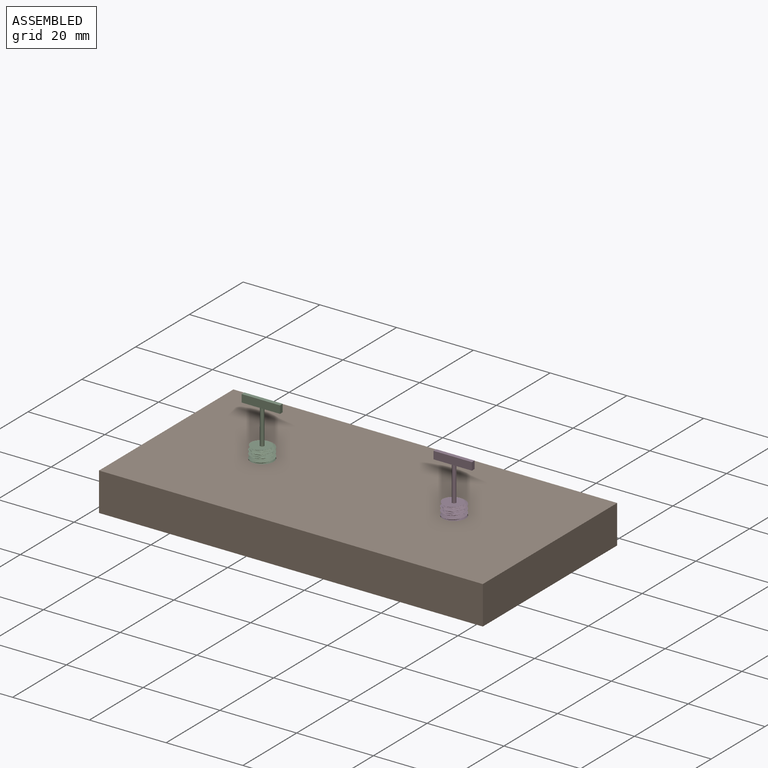
[diagram: assembled view]
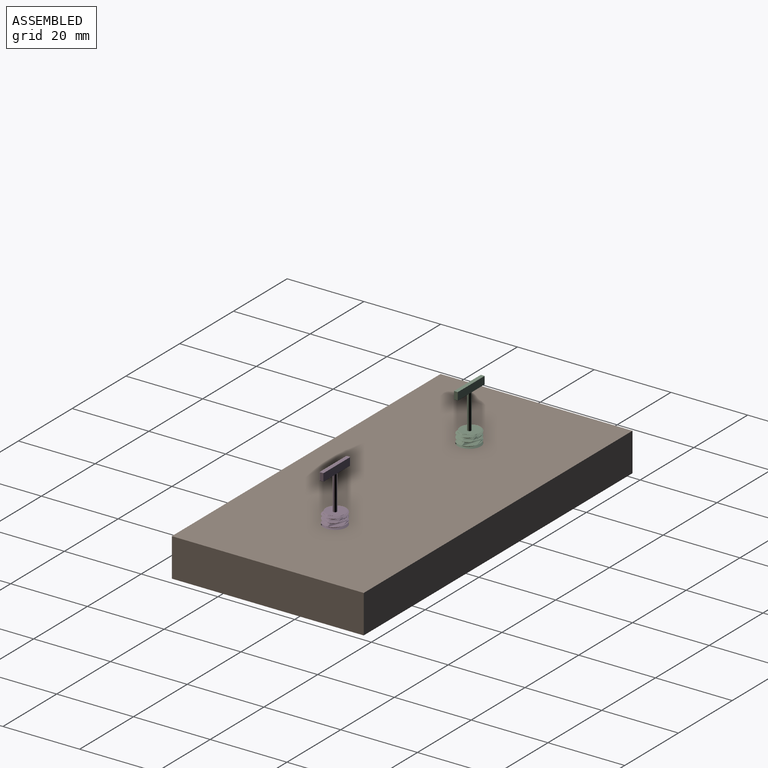
[diagram: assembled view, second angle]
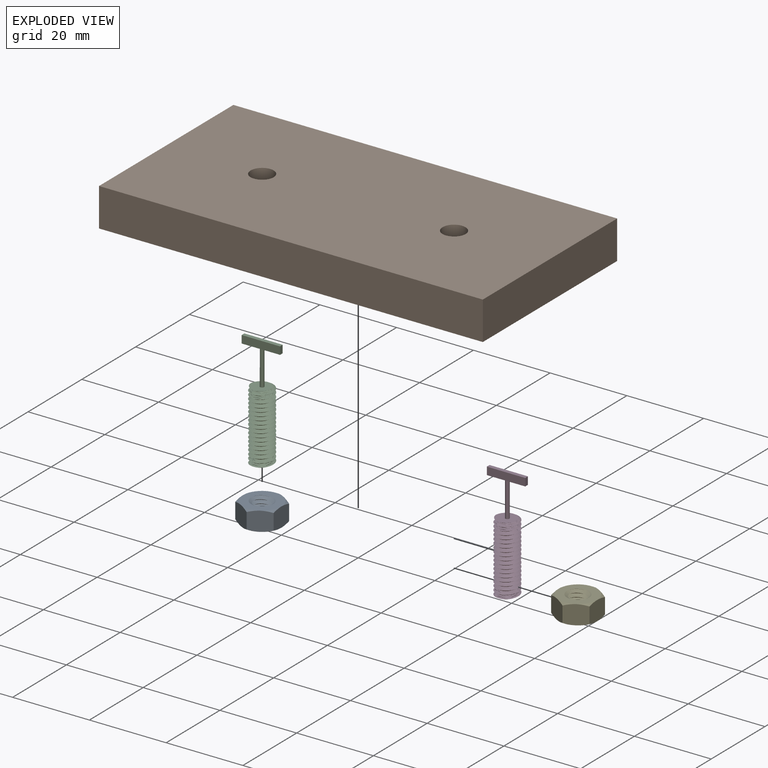
[diagram: exploded view]
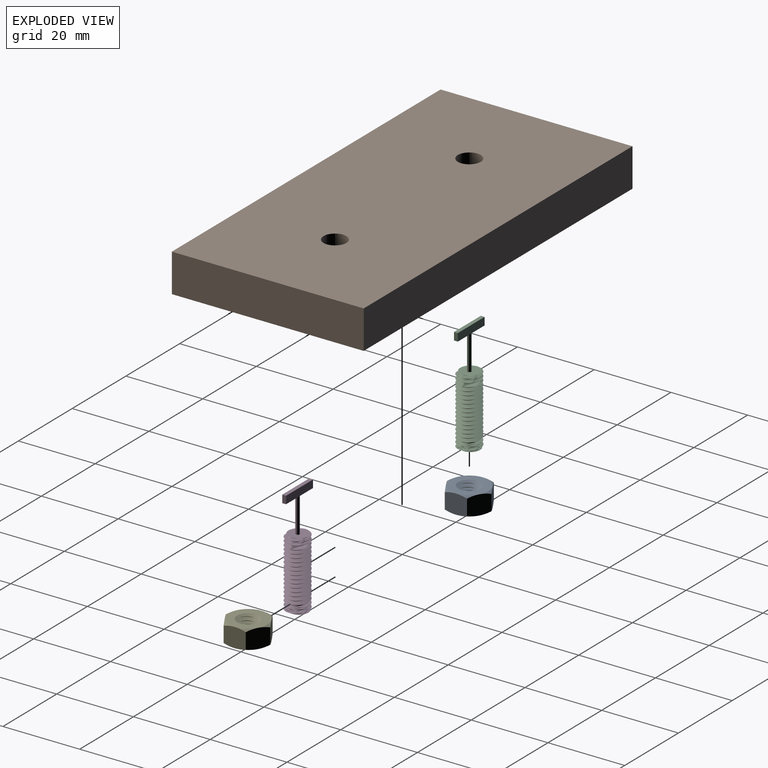
[diagram: exploded view, second angle]
ASSEMBLY  parts=5 mates=2
PART A: 25 faces, bbox 12x12x6.5 mm
  f0: cone r=0mm half-angle=60deg, axis (0,0,-1), area 6.2mm2, adj f3,f23,f24
  f1: plane 10.01x10.01mm, normal (0,0,1), area 52.2mm2, adj f2,f16,f17,f18,f19,f20,f21,f22
  f2: cone r=0mm half-angle=60deg, axis (0,0,1), area 6.2mm2, adj f1,f23,f24
  f3: plane 10.01x10.01mm, normal (0,0,-1), area 52.2mm2, adj f0,f4,f5,f6,f7,f8,f9,f22
  f4: cone r=5mm half-angle=60deg, axis (0,0,1), area 2.5mm2, adj f3,f14,f15
  f5: cone r=5mm half-angle=60deg, axis (0,0,1), area 2.5mm2, adj f3,f10,f15
  f6: cone r=5mm half-angle=60deg, axis (0,0,1), area 2.5mm2, adj f3,f13,f14
  f7: cone r=5mm half-angle=60deg, axis (0,0,1), area 2.5mm2, adj f3,f12,f13
  f8: cone r=5mm half-angle=60deg, axis (0,0,1), area 2.5mm2, adj f3,f11,f12
  f9: cone r=5mm half-angle=60deg, axis (0,0,1), area 2.5mm2, adj f3,f10,f11
  f10: plane 5.48x5.47mm, normal (0.5,0.87,0), area 27.1mm2, adj f5,f9,f11,f15,f16,f20
  f11: plane 6.25x5.48mm, normal (1,0,0), area 27.1mm2, adj f8,f9,f10,f12,f19,f20
  f12: plane 5.48x5.47mm, normal (0.5,-0.87,0), area 27.1mm2, adj f7,f8,f11,f13,f18,f19
  f13: plane 5.48x5.47mm, normal (-0.5,-0.87,0), area 27.1mm2, adj f6,f7,f12,f14,f17,f18
  f14: plane 6.25x5.48mm, normal (-1,0,0), area 27.1mm2, adj f4,f6,f13,f15,f17,f21
  f15: plane 5.48x5.47mm, normal (-0.5,0.87,0), area 27.1mm2, adj f4,f5,f10,f14,f16,f21
  f16: cone r=5mm half-angle=60deg, axis (0,0,-1), area 2.5mm2, adj f1,f10,f15
  f17: cone r=5mm half-angle=60deg, axis (0,0,-1), area 2.5mm2, adj f1,f13,f14
  f18: cone r=5mm half-angle=60deg, axis (0,0,-1), area 2.5mm2, adj f1,f12,f13
  f19: cone r=5mm half-angle=60deg, axis (0,0,-1), area 2.5mm2, adj f1,f11,f12
  f20: cone r=5mm half-angle=60deg, axis (0,0,-1), area 2.5mm2, adj f1,f10,f11
  f21: cone r=5mm half-angle=60deg, axis (0,0,-1), area 2.5mm2, adj f1,f14,f15
  f22: cylinder r=3mm len=6mm, axis (0,0,-1), area 0.2mm2, adj f1,f3,f23,f24
  f23: bspline ~6.93x6mm, area 75mm2, adj f0,f1,f2,f3,f22,f24
  f24: bspline ~6.93x6mm, area 74.9mm2, adj f0,f1,f2,f3,f22,f23
PART B: 8 faces, bbox 100x50x10 mm
  f0: plane 100x10mm, normal (0,1,0), area 1000mm2, adj f1,f3,f4,f5
  f1: plane 50x10mm, normal (-1,0,0), area 500mm2, adj f0,f2,f4,f5
  f2: plane 100x10mm, normal (0,-1,0), area 1000mm2, adj f1,f3,f4,f5
  f3: plane 50x10mm, normal (1,0,0), area 500mm2, adj f0,f2,f4,f5
  f4: plane 100x50mm, normal (0,0,1), area 4943.5mm2, adj f0,f1,f2,f3,f6,f7
  f5: plane 100x50mm, normal (0,0,-1), area 4943.5mm2, adj f0,f1,f2,f3,f6,f7
  f6: cylinder r=3mm len=10mm, axis (0,0,1), area 188.5mm2, adj f4,f5
  f7: cylinder r=3mm len=10mm, axis (0,0,1), area 188.5mm2, adj f4,f5
PART C: 13 faces, bbox 10.7x7.6x30.4 mm
  f0: cylinder r=0.5mm len=9mm, axis (0,0,-1), area 28.3mm2, adj f2,f6,f12
  f1: cylinder r=3mm len=18mm, axis (0,0,-1), area 1.3mm2, adj f2,f3,f4,f5
  f2: plane 5.86x5.84mm, normal (0,0,1), area 20.1mm2, adj f0,f1,f4,f5
  f3: plane 5.86x5.84mm, normal (0,0,-1), area 20.9mm2, adj f1,f4,f5
  f4: bspline ~19.17x6.93mm, area 290.5mm2, adj f1,f2,f3,f5
  f5: bspline ~19x6.93mm, area 290.5mm2, adj f1,f2,f3,f4
  f6: plane 5x1mm, normal (0,0,-1), area 4.6mm2, adj f0,f7,f8,f9
  f7: plane 10x2mm, normal (0,1,0), area 20mm2, adj f6,f8,f10,f11,f12
  f8: plane 2x1mm, normal (-1,0,0), area 2mm2, adj f6,f7,f9,f11
  f9: plane 10x2mm, normal (0,-1,0), area 20mm2, adj f6,f8,f10,f11,f12
  f10: plane 2x1mm, normal (1,0,0), area 2mm2, adj f7,f9,f11,f12
  f11: plane 10x1mm, normal (0,0,1), area 10mm2, adj f7,f8,f9,f10
  f12: plane 5x1mm, normal (0,0,-1), area 4.6mm2, adj f0,f7,f9,f10
PART D: same geometry as C
PART E: same geometry as A
PLACE A t=(-25,0,-5)mm
PLACE B at identity fixed
PLACE C rot(axis=(0,0,1),0deg) t=(-25,0,-5)mm
PLACE D t=(25,0,-5)mm
PLACE E t=(25,0,-5)mm
MATE fastened B.f7 <-> A.f22  axis (0,0,-1) through (-25,0,0)mm
MATE cylindrical A.f22 <-> C.f0  axis (0,0,1) through (-25,0,-5)mm
